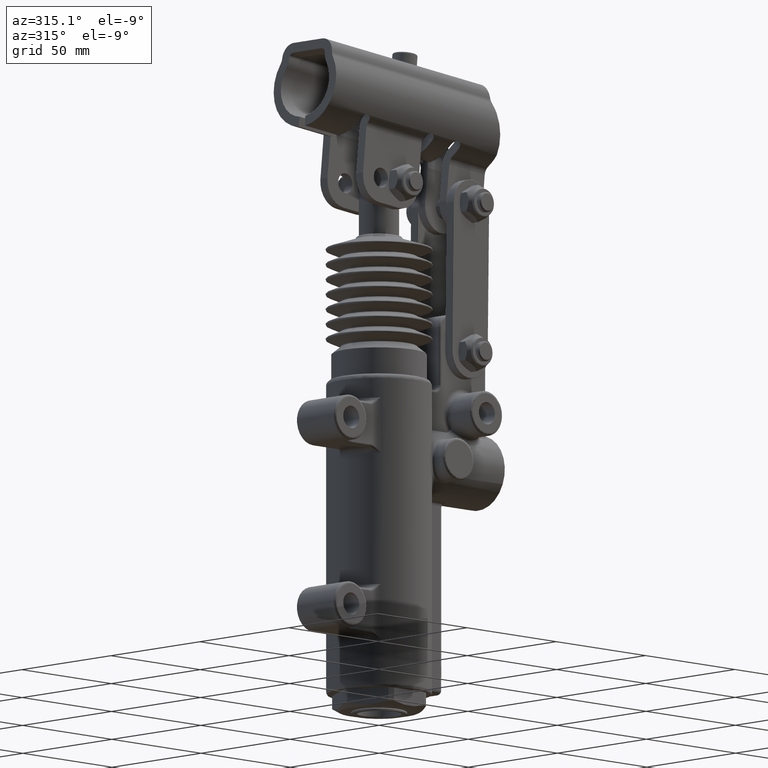
[diagram: clean part render]
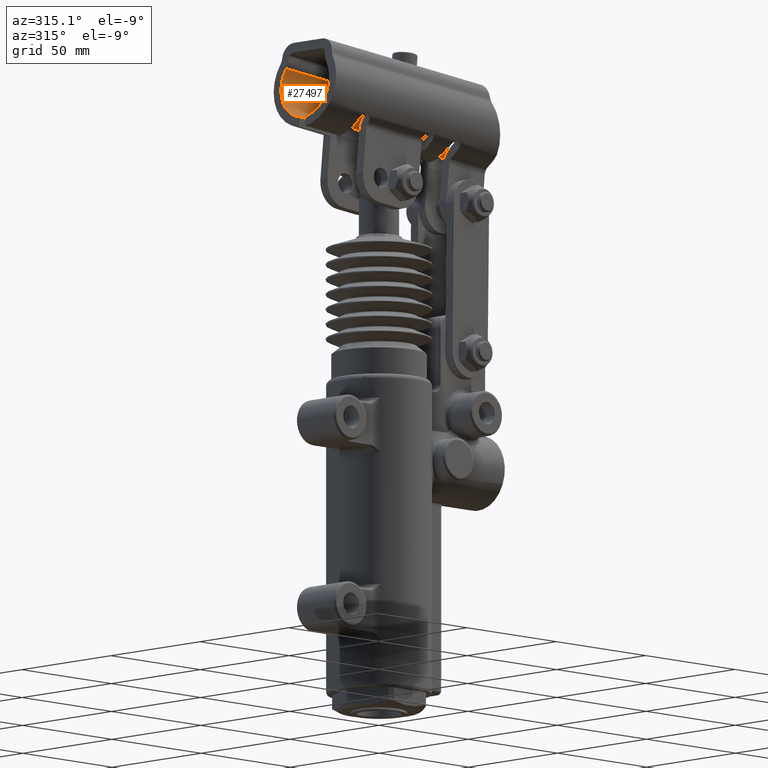
[diagram: same view with one face highlighted and labeled with its STEP entity id]
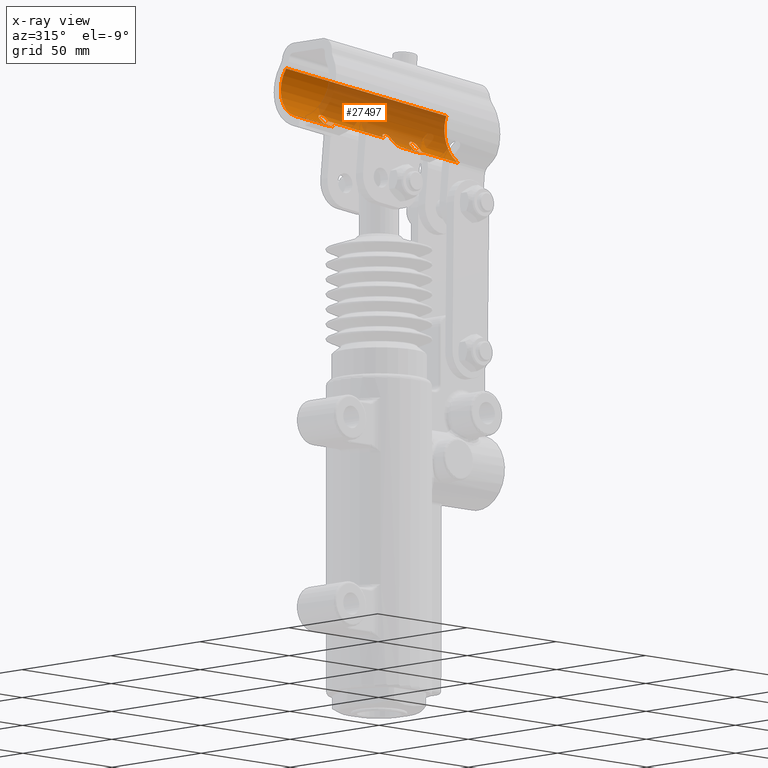
[diagram: x-ray of the same camera — body ghosted, the highlighted face saturated]
A machine part, auxiliary view. The second image highlights one B-rep face of the part: STEP entity #27497.
The next image is the same camera in x-ray: the body ghosted, the highlighted face saturated — about 67% of this face is hidden behind the body in this view.
In plain terms, the highlighted cylindrical surface (edge-blend (fillet) strip) has radius 13.5 mm, axis along (-0.995, 0, 0.1001).
Its self-contained STEP definition (entity closure, byte-faithful):
#25185=CARTESIAN_POINT('',(-42.862935570234121,1.500000000000021,228.49366389214399));
#25186=VERTEX_POINT('',#25185);
#25193=CARTESIAN_POINT('',(-40.780237089369422,11.302325581395326,249.18845081730996));
#25194=VERTEX_POINT('',#25193);
#25195=CARTESIAN_POINT('',(-41.519510487215435,-1.110223E-014,241.84264171991481));
#25196=DIRECTION('',(-0.994974061767766,1.595946E-016,0.100132993610268));
#25197=DIRECTION('',(-0.06688607613716,0.744186046511628,-0.664615212733178));
#25198=AXIS2_PLACEMENT_3D('',#25195,#25196,#25197);
#25199=CIRCLE('',#25198,13.500000000000002);
#25200=EDGE_CURVE('',#25194,#25186,#25199,.T.);
#25763=CARTESIAN_POINT('',(48.977233385870136,11.302325581395294,240.15536687781247));
#25764=VERTEX_POINT('',#25763);
#25772=CARTESIAN_POINT('',(51.952592121395824,8.497170428079636,221.89235027739659));
#25773=VERTEX_POINT('',#25772);
#25774=CARTESIAN_POINT('',(50.206263603424333,-4.662937E-014,232.61147007047865));
#25775=DIRECTION('',(0.986987468538687,-9.424088E-016,0.160797191976713));
#25776=DIRECTION('',(0.160797191976713,1.627943E-015,-0.986987468538686));
#25777=AXIS2_PLACEMENT_3D('',#25774,#25775,#25776);
#25778=ELLIPSE('',#25777,13.976228435536125,13.500000000000007);
#25779=EDGE_CURVE('',#25773,#25764,#25778,.T.);
#26031=CARTESIAN_POINT('',(51.881377048525692,7.534883720930194,221.18471987748603));
#26032=VERTEX_POINT('',#26031);
#26033=CARTESIAN_POINT('',(53.003025380722313,-4.773959E-014,232.33000732693932));
#26034=DIRECTION('',(0.994974061767766,-3.885781E-016,-0.100132993610268));
#26035=DIRECTION('',(-0.06688607613716,0.744186046511628,-0.664615212733178));
#26036=AXIS2_PLACEMENT_3D('',#26033,#26034,#26035);
#26037=CIRCLE('',#26036,13.500000000000002);
#26038=EDGE_CURVE('',#26032,#25773,#26037,.T.);
#26166=CARTESIAN_POINT('',(-23.958428396646578,1.500000000000014,226.59113701354892));
#26167=VERTEX_POINT('',#26166);
#26174=CARTESIAN_POINT('',(-23.958428396646578,1.500000000000014,226.59113701354892));
#26175=DIRECTION('',(-0.994974061767766,3.739699E-016,0.100132993610268));
#26176=VECTOR('',#26175,18.999999999999989);
#26177=LINE('',#26174,#26176);
#26178=EDGE_CURVE('',#26167,#25186,#26177,.T.);
#26188=CARTESIAN_POINT('',(-23.517965341479563,10.046511627906957,230.96780946942178));
#26189=VERTEX_POINT('',#26188);
#26190=CARTESIAN_POINT('',(-22.615003313627913,2.220446E-015,239.94011484131971));
#26191=DIRECTION('',(-0.994974061767766,6.800116E-016,0.100132993610268));
#26192=DIRECTION('',(-0.06688607613716,0.744186046511628,-0.664615212733178));
#26193=AXIS2_PLACEMENT_3D('',#26190,#26191,#26192);
#26194=CIRCLE('',#26193,13.500000000000007);
#26195=EDGE_CURVE('',#26189,#26167,#26194,.T.);
#26524=CARTESIAN_POINT('',(-18.561542384382143,9.878048780487799,230.2838419171847));
#26525=VERTEX_POINT('',#26524);
#26534=CARTESIAN_POINT('',(12.282653530418601,9.878048780487784,227.17971911526638));
#26535=VERTEX_POINT('',#26534);
#26543=CARTESIAN_POINT('',(12.282653530418601,9.878048780487784,227.17971911526638));
#26544=DIRECTION('',(-0.994974061767766,4.011128E-016,0.100132993610268));
#26545=VECTOR('',#26544,30.999999999999993);
#26546=LINE('',#26543,#26545);
#26547=EDGE_CURVE('',#26535,#26525,#26546,.T.);
#26560=CARTESIAN_POINT('',(-18.543095032640728,10.046511627906956,230.46714450137046));
#26561=VERTEX_POINT('',#26560);
#26562=CARTESIAN_POINT('',(-17.640133004789071,-7.771561E-015,239.43944987326833));
#26563=DIRECTION('',(-0.994974061767766,6.938894E-016,0.100132993610268));
#26564=DIRECTION('',(-0.06688607613716,0.744186046511627,-0.664615212733179));
#26565=AXIS2_PLACEMENT_3D('',#26562,#26563,#26564);
#26566=CIRCLE('',#26565,13.500000000000025);
#26567=EDGE_CURVE('',#26561,#26525,#26566,.T.);
#26590=CARTESIAN_POINT('',(12.301100882160014,10.046511627906945,227.36302169945213));
#26591=VERTEX_POINT('',#26590);
#26598=CARTESIAN_POINT('',(13.204062910011674,-1.998401E-014,236.33532707135004));
#26599=DIRECTION('',(-0.994974061767766,6.938894E-016,0.100132993610268));
#26600=DIRECTION('',(-0.06688607613716,0.744186046511627,-0.664615212733179));
#26601=AXIS2_PLACEMENT_3D('',#26598,#26599,#26600);
#26602=CIRCLE('',#26601,13.500000000000025);
#26603=EDGE_CURVE('',#26591,#26535,#26602,.T.);
#26992=CARTESIAN_POINT('',(16.835508135831834,1.499999999999986,222.48568427552789));
#26993=VERTEX_POINT('',#26992);
#27001=CARTESIAN_POINT('',(26.785248753509492,1.499999999999983,221.48435433942524));
#27002=VERTEX_POINT('',#27001);
#27009=CARTESIAN_POINT('',(26.785248753509492,1.499999999999983,221.48435433942524));
#27010=DIRECTION('',(-0.994974061767766,3.108624E-016,0.100132993610268));
#27011=VECTOR('',#27010,10.0);
#27012=LINE('',#27009,#27011);
#27013=EDGE_CURVE('',#27002,#26993,#27012,.T.);
#27023=CARTESIAN_POINT('',(17.275971190998849,10.046511627906941,226.86235673140078));
#27024=VERTEX_POINT('',#27023);
#27025=CARTESIAN_POINT('',(18.178933218850503,-2.664535E-014,235.83466210329871));
#27026=DIRECTION('',(-0.994974061767766,7.008283E-016,0.100132993610268));
#27027=DIRECTION('',(-0.083085061644193,0.558139534883721,-0.825576848107651));
#27028=AXIS2_PLACEMENT_3D('',#27025,#27026,#27027);
#27029=CIRCLE('',#27028,13.500000000000007);
#27030=EDGE_CURVE('',#27024,#26993,#27029,.T.);
#27048=CARTESIAN_POINT('',(27.225711808676508,10.046511627906938,225.86102679529813));
#27049=VERTEX_POINT('',#27048);
#27050=CARTESIAN_POINT('',(28.128673836528165,-2.997602E-014,234.83333216719601));
#27051=DIRECTION('',(-0.994974061767766,6.800116E-016,0.100132993610268));
#27052=DIRECTION('',(-0.06688607613716,0.744186046511628,-0.664615212733178));
#27053=AXIS2_PLACEMENT_3D('',#27050,#27051,#27052);
#27054=CIRCLE('',#27053,13.500000000000002);
#27055=EDGE_CURVE('',#27049,#27002,#27054,.T.);
#27073=CARTESIAN_POINT('',(31.981895813170379,7.534883720930208,223.18737974969139));
#27074=VERTEX_POINT('',#27073);
#27091=CARTESIAN_POINT('',(51.881377048525692,7.534883720930194,221.18471987748603));
#27092=DIRECTION('',(-0.994974061767766,7.105427E-016,0.100132993610268));
#27093=VECTOR('',#27092,19.999999999999993);
#27094=LINE('',#27091,#27093);
#27095=EDGE_CURVE('',#26032,#27074,#27094,.T.);
#27153=CARTESIAN_POINT('',(32.200582117515339,10.046511627906936,225.36036182724678));
#27154=VERTEX_POINT('',#27153);
#27155=CARTESIAN_POINT('',(33.103544145366982,-3.330669E-014,234.33266719914468));
#27156=DIRECTION('',(-0.994974061767766,7.216450E-016,0.100132993610268));
#27157=DIRECTION('',(-0.083085061644193,0.558139534883721,-0.825576848107651));
#27158=AXIS2_PLACEMENT_3D('',#27155,#27156,#27157);
#27159=CIRCLE('',#27158,13.500000000000004);
#27160=EDGE_CURVE('',#27154,#27074,#27159,.T.);
#27351=CARTESIAN_POINT('',(-23.517965341479563,10.046511627906948,230.96780946942175));
#27352=CARTESIAN_POINT('',(-23.494516048705663,10.256710095121495,231.20081396909384));
#27353=CARTESIAN_POINT('',(-23.406009096142437,10.471572969170671,231.45072699216382));
#27354=CARTESIAN_POINT('',(-23.103118291803462,10.850279919796417,231.91018267918591));
#27355=CARTESIAN_POINT('',(-22.888810061666405,11.014614404642673,232.1193707737844));
#27356=CARTESIAN_POINT('',(-22.410995804541514,11.267042955620479,232.44199599842187));
#27357=CARTESIAN_POINT('',(-22.115355156660314,11.372182712680834,232.57707206131573));
#27358=CARTESIAN_POINT('',(-21.480730725143935,11.509761025956069,232.73396060870613));
#27359=CARTESIAN_POINT('',(-21.141730912892179,11.542674563888738,232.75529100636732));
#27360=CARTESIAN_POINT('',(-20.515505668292597,11.542674563888738,232.69226845047811));
#27361=CARTESIAN_POINT('',(-20.187554181779372,11.509761025956067,232.60381687578953));
#27362=CARTESIAN_POINT('',(-19.596917549403521,11.372182712680825,232.32361952770165));
#27363=CARTESIAN_POINT('',(-19.334120635986061,11.267042955620479,232.1323429798847));
#27364=CARTESIAN_POINT('',(-18.930174228330632,11.014614404642675,231.72097842182649));
#27365=CARTESIAN_POINT('',(-18.76184627836853,10.850279919796415,231.47328228199427));
#27366=CARTESIAN_POINT('',(-18.556580307195887,10.471572969170669,230.96268630789282));
#27367=CARTESIAN_POINT('',(-18.519645739866831,10.256710095121502,230.70014900104252));
#27368=CARTESIAN_POINT('',(-18.543095032640732,10.046511627906957,230.46714450137043));
#27369=B_SPLINE_CURVE_WITH_KNOTS('',3,(#27351,#27352,#27353,#27354,#27355,#27356,#27357,#27358,#27359,#27360,#27361,#27362,#27363,#27364,#27365,#27366,#27367,#27368),.UNSPECIFIED.,.F.,.U.,(4,2,2,2,2,2,2,2,4),(0.377625373040333,0.472029782702462,0.566434192364591,0.660842469222629,0.755250746080667,0.849659022938705,0.944067299796743,1.038471709458872,1.132876119121001),.UNSPECIFIED.);
#27370=EDGE_CURVE('',#26189,#26561,#27369,.T.);
#27383=CARTESIAN_POINT('',(12.301100882160011,10.046511627906931,227.36302169945213));
#27384=CARTESIAN_POINT('',(12.324550174933913,10.256710095121493,227.59602619912425));
#27385=CARTESIAN_POINT('',(12.413057127497131,10.471572969170655,227.84593922219415));
#27386=CARTESIAN_POINT('',(12.715947931836116,10.850279919796403,228.30539490921623));
#27387=CARTESIAN_POINT('',(12.930256161973173,11.014614404642661,228.51458300381478));
#27388=CARTESIAN_POINT('',(13.408070419098053,11.267042955620465,228.8372082284522));
#27389=CARTESIAN_POINT('',(13.703711066979247,11.372182712680816,228.97228429134606));
#27390=CARTESIAN_POINT('',(14.338335498495622,11.509761025956053,229.12917283873651));
#27391=CARTESIAN_POINT('',(14.677335310747385,11.542674563888726,229.15050323639764));
#27392=CARTESIAN_POINT('',(15.303560555346971,11.542674563888724,229.08748068050843));
#27393=CARTESIAN_POINT('',(15.631512041860187,11.509761025956053,228.99902910581986));
#27394=CARTESIAN_POINT('',(16.222148674236049,11.372182712680816,228.71883175773203));
#27395=CARTESIAN_POINT('',(16.484945587653502,11.267042955620463,228.52755520991508));
#27396=CARTESIAN_POINT('',(16.888891995308938,11.014614404642661,228.11619065185684));
#27397=CARTESIAN_POINT('',(17.057219945271051,10.850279919796399,227.8684945120246));
#27398=CARTESIAN_POINT('',(17.262485916443691,10.471572969170651,227.35789853792315));
#27399=CARTESIAN_POINT('',(17.299420483772746,10.256710095121495,227.0953612310729));
#27400=CARTESIAN_POINT('',(17.275971190998845,10.046511627906948,226.86235673140084));
#27401=B_SPLINE_CURVE_WITH_KNOTS('',3,(#27383,#27384,#27385,#27386,#27387,#27388,#27389,#27390,#27391,#27392,#27393,#27394,#27395,#27396,#27397,#27398,#27399,#27400),.UNSPECIFIED.,.F.,.U.,(4,2,2,2,2,2,2,2,4),(0.377625373040334,0.472029782702463,0.566434192364592,0.66084246922263,0.755250746080668,0.849659022938706,0.944067299796744,1.038471709458873,1.132876119121002),.UNSPECIFIED.);
#27402=EDGE_CURVE('',#26591,#27024,#27401,.T.);
#27415=CARTESIAN_POINT('',(27.225711808676508,10.046511627906945,225.86102679529813));
#27416=CARTESIAN_POINT('',(27.249161101450415,10.256710095121488,226.09403129497022));
#27417=CARTESIAN_POINT('',(27.337668054013626,10.471572969170651,226.34394431804014));
#27418=CARTESIAN_POINT('',(27.640558858352602,10.850279919796398,226.80340000506223));
#27419=CARTESIAN_POINT('',(27.854867088489659,11.014614404642655,227.01258809966075));
#27420=CARTESIAN_POINT('',(28.332681345614539,11.267042955620461,227.33521332429819));
#27421=CARTESIAN_POINT('',(28.628321993495739,11.372182712680811,227.47028938719205));
#27422=CARTESIAN_POINT('',(29.262946425012117,11.509761025956049,227.62717793458248));
#27423=CARTESIAN_POINT('',(29.601946237263874,11.54267456388872,227.64850833224364));
#27424=CARTESIAN_POINT('',(30.228171481863463,11.54267456388872,227.5854857763544));
#27425=CARTESIAN_POINT('',(30.556122968376684,11.509761025956047,227.49703420166583));
#27426=CARTESIAN_POINT('',(31.146759600752535,11.372182712680807,227.216836853578));
#27427=CARTESIAN_POINT('',(31.409556514169992,11.267042955620461,227.02556030576105));
#27428=CARTESIAN_POINT('',(31.813502921825428,11.014614404642655,226.61419574770281));
#27429=CARTESIAN_POINT('',(31.981830871787544,10.850279919796396,226.36649960787057));
#27430=CARTESIAN_POINT('',(32.187096842960173,10.471572969170651,225.85590363376912));
#27431=CARTESIAN_POINT('',(32.224031410289243,10.256710095121488,225.5933663269189));
#27432=CARTESIAN_POINT('',(32.200582117515339,10.046511627906927,225.36036182724675));
#27433=B_SPLINE_CURVE_WITH_KNOTS('',3,(#27415,#27416,#27417,#27418,#27419,#27420,#27421,#27422,#27423,#27424,#27425,#27426,#27427,#27428,#27429,#27430,#27431,#27432),.UNSPECIFIED.,.F.,.U.,(4,2,2,2,2,2,2,2,4),(0.377625373040333,0.472029782702463,0.566434192364592,0.66084246922263,0.755250746080668,0.849659022938705,0.944067299796743,1.038471709458872,1.132876119121002),.UNSPECIFIED.);
#27434=EDGE_CURVE('',#27049,#27154,#27433,.T.);
#27462=CARTESIAN_POINT('',(48.977233385870143,11.302325581395293,240.15536687781244));
#27463=DIRECTION('',(-0.994974061767766,3.938233E-016,0.100132993610268));
#27464=VECTOR('',#27463,90.210864709144133);
#27465=LINE('',#27462,#27464);
#27466=EDGE_CURVE('',#25764,#25194,#27465,.T.);
#27473=CARTESIAN_POINT('',(53.003025380722313,-4.773959E-014,232.33000732693932));
#27474=DIRECTION('',(-0.994974061767766,3.879183E-016,0.100132993610268));
#27475=DIRECTION('',(-0.06688607613716,0.744186046511628,-0.664615212733178));
#27476=AXIS2_PLACEMENT_3D('',#27473,#27474,#27475);
#27477=CYLINDRICAL_SURFACE('',#27476,13.500000000000002);
#27478=ORIENTED_EDGE('',*,*,#25200,.T.);
#27479=ORIENTED_EDGE('',*,*,#26178,.F.);
#27480=ORIENTED_EDGE('',*,*,#26195,.F.);
#27481=ORIENTED_EDGE('',*,*,#27370,.T.);
#27482=ORIENTED_EDGE('',*,*,#26567,.T.);
#27483=ORIENTED_EDGE('',*,*,#26547,.F.);
#27484=ORIENTED_EDGE('',*,*,#26603,.F.);
#27485=ORIENTED_EDGE('',*,*,#27402,.T.);
#27486=ORIENTED_EDGE('',*,*,#27030,.T.);
#27487=ORIENTED_EDGE('',*,*,#27013,.F.);
#27488=ORIENTED_EDGE('',*,*,#27055,.F.);
#27489=ORIENTED_EDGE('',*,*,#27434,.T.);
#27490=ORIENTED_EDGE('',*,*,#27160,.T.);
#27491=ORIENTED_EDGE('',*,*,#27095,.F.);
#27492=ORIENTED_EDGE('',*,*,#26038,.T.);
#27493=ORIENTED_EDGE('',*,*,#25779,.T.);
#27494=ORIENTED_EDGE('',*,*,#27466,.T.);
#27495=EDGE_LOOP('',(#27478,#27479,#27480,#27481,#27482,#27483,#27484,#27485,#27486,#27487,#27488,#27489,#27490,#27491,#27492,#27493,#27494));
#27496=FACE_OUTER_BOUND('',#27495,.T.);
#27497=ADVANCED_FACE('',(#27496),#27477,.F.);